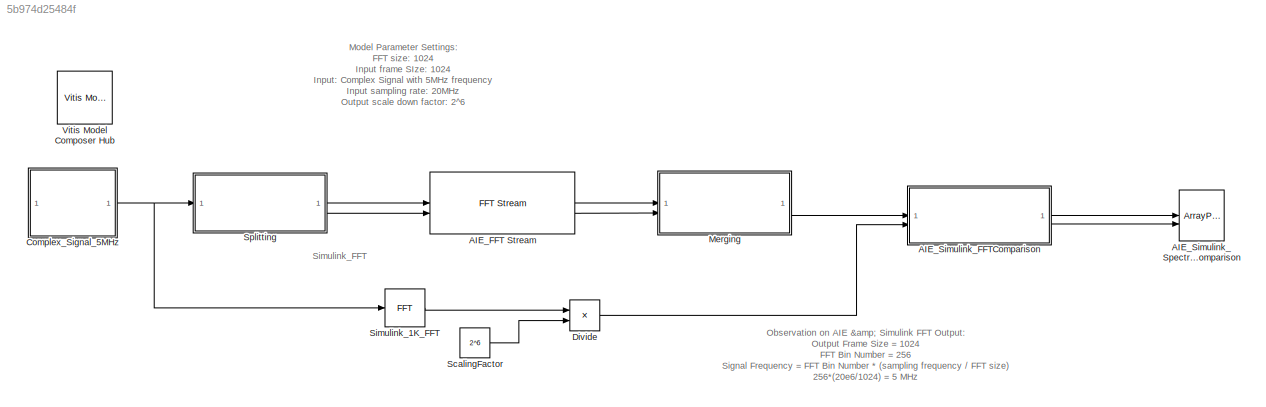
MODEL slx_5b974d25484f
KIND model
CONFIG AbsTol = auto
CONFIG EnableMultiTasking = off
CONFIG FixedStep = auto
CONFIG MaxStep = auto
CONFIG MinStep = auto
CONFIG RelTol = 1e-3
CONFIG SampleTimeConstraint = Unconstrained
CONFIG SolverName = VariableStepAuto
CONFIG StartTime = 0.0
CONFIG StopTime = 0.3e-4
BLOCK [Reference] AIE_FFT Stream  REF=aieDSP/FFT Stream
  SourceBlock = aieDSP/FFT Stream
  SourceType = FFT Stream
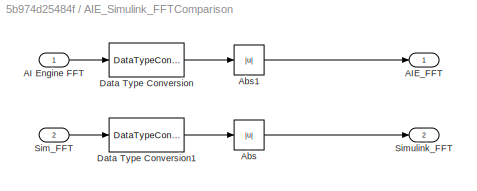
BLOCK [SubSystem] AIE_Simulink_FFTComparison
BLOCK [Inport] AIE_Simulink_FFTComparison/AI Engine FFT
BLOCK [Outport] AIE_Simulink_FFTComparison/AIE_FFT
BLOCK [Abs] AIE_Simulink_FFTComparison/Abs
  SaturateOnIntegerOverflow = off
BLOCK [Abs] AIE_Simulink_FFTComparison/Abs1
  OutDataTypeStr = single
  SaturateOnIntegerOverflow = off
BLOCK [DataTypeConversion] AIE_Simulink_FFTComparison/Data Type Conversion
  OutDataTypeStr = single
  RndMeth = Floor
  SaturateOnIntegerOverflow = off
BLOCK [DataTypeConversion] AIE_Simulink_FFTComparison/Data Type Conversion1
  OutDataTypeStr = single
  RndMeth = Floor
  SaturateOnIntegerOverflow = off
BLOCK [Inport] AIE_Simulink_FFTComparison/Sim_FFT
  Port = 2
BLOCK [Outport] AIE_Simulink_FFTComparison/Simulink_FFT
  Port = 2
BLOCK [ArrayPlot] AIE_Simulink_SpectrumComparison
  AxesScaling = Manual
  CustomXData = [100,1000]
  GraphicalSettings = {"Style":{"BackgroundColor":[0.15686274509803921,0.15686274509803921,0.15686274509803921],"AxesColor":[0,0,0],"LabelsColor":[0.68627450980392157,0.68627450980392157,0.68627450980392157],"PreserveColors":false,"Visible":[true,true],"LineStyle":["-","-"],"LineWidth":[1.5,1.5],"BarWidth":[0.9,0.9],"LineColor":[[1,1,0.066666666666666666],[0.074509803921568626,0.62352941176470589,1]],"LineFaceAlpha":[1...<+615ch>
  NumInputPorts = 2
  PlotType = Line
  ScopeFrameLocation = window
  ShowLegend = on
  Visible = on
  WasSavedAsWebScope = on
  WindowPosition = [915.000000,232.000000,1280.000000,655.000000,]
  YLimits = [-22.841163310961967 47.15883668903803]
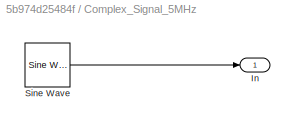
BLOCK [SubSystem] Complex_Signal_5MHz
BLOCK [Outport] Complex_Signal_5MHz/In
BLOCK [Reference] Complex_Signal_5MHz/Sine Wave  REF=dspsrcs4/Sine Wave
  SourceBlock = dspsrcs4/Sine Wave
  SourceType = Sine Wave
BLOCK [Product] Divide
  Inputs = */
  OutDataTypeStr = int16
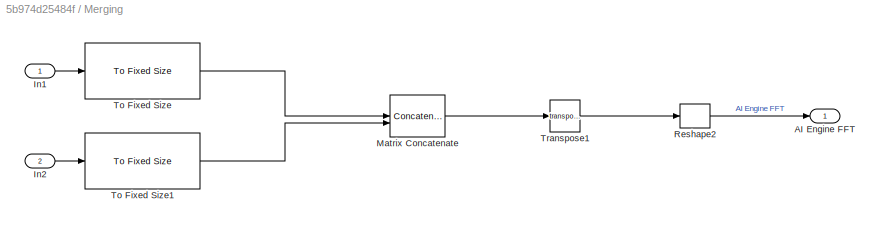
BLOCK [SubSystem] Merging
BLOCK [Outport] Merging/AI Engine FFT
BLOCK [Inport] Merging/In1
BLOCK [Inport] Merging/In2
  Port = 2
BLOCK [Concatenate] Merging/Matrix Concatenate
  ConcatenateDimension = 2
  Mode = Multidimensional array
BLOCK [Reshape] Merging/Reshape2
  OutputDimensions = [1, 10]
BLOCK [Reference] Merging/To Fixed Size  REF=aieUtilities/To Fixed Size
  SourceBlock = aieUtilities/To Fixed Size
  SourceType = To Fixed Size
BLOCK [Reference] Merging/To Fixed Size1  REF=aieUtilities/To Fixed Size
  SourceBlock = aieUtilities/To Fixed Size
  SourceType = To Fixed Size
BLOCK [Math] Merging/Transpose1
  Operator = transpose
BLOCK [Constant] ScalingFactor
  OutDataTypeStr = int16
  Value = 2^6
BLOCK [Reference] Simulink_1K_FFT  REF=dspxfrm3/FFT
  SourceBlock = dspxfrm3/FFT
  SourceType = FFT
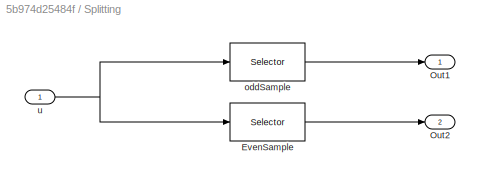
BLOCK [SubSystem] Splitting
BLOCK [Selector] Splitting/EvenSample
  IndexOptions = Index vector (dialog)
  Indices = 2:2:1024
  InputPortWidth = 1024
  OutputSizes = 1
BLOCK [Outport] Splitting/Out1
BLOCK [Outport] Splitting/Out2
  Port = 2
BLOCK [Selector] Splitting/oddSample
  IndexOptions = Index vector (dialog)
  Indices = 1:2:1024
  InputPortWidth = 1024
  OutputSizes = 1
BLOCK [Inport] Splitting/u
BLOCK [Reference] Vitis Model Composer Hub  REF=vmcUtilities/Vitis Model Composer Hub
  SourceBlock = vmcUtilities/Vitis Model Composer Hub
  SourceType = VMC Hub
  Tag = genX
  UserDataPersistent = on
ANNOTATION (root): Model Parameter Settings: FFT size: 1024 Input frame SIze: 1024 Input: Complex Signal with 5MHz frequency Input sampling rate: 20MHz Output scale down factor: 2^6 SSR : 2
ANNOTATION (root): Observation on AIE & Simulink FFT Output: Output Frame Size = 1024 FFT Bin Number = 256 Signal Frequency = FFT Bin Number * (sampling frequency / FFT size) 256*(20e6/1024) = 5 MHz
ANNOTATION (root): Simulink_FFT
LINE AIE_FFT Stream:1 -> Merging:1
LINE AIE_FFT Stream:2 -> Merging:2
LINE AIE_Simulink_FFTComparison/AI Engine FFT:1 -> AIE_Simulink_FFTComparison/Data Type Conversion:1
LINE AIE_Simulink_FFTComparison/Abs1:1 -> AIE_Simulink_FFTComparison/AIE_FFT:1
LINE AIE_Simulink_FFTComparison/Abs:1 -> AIE_Simulink_FFTComparison/Simulink_FFT:1
LINE AIE_Simulink_FFTComparison/Data Type Conversion1:1 -> AIE_Simulink_FFTComparison/Abs:1
LINE AIE_Simulink_FFTComparison/Data Type Conversion:1 -> AIE_Simulink_FFTComparison/Abs1:1
LINE AIE_Simulink_FFTComparison/Sim_FFT:1 -> AIE_Simulink_FFTComparison/Data Type Conversion1:1
LINE AIE_Simulink_FFTComparison:1 -> AIE_Simulink_SpectrumComparison:1
LINE AIE_Simulink_FFTComparison:2 -> AIE_Simulink_SpectrumComparison:2
LINE Complex_Signal_5MHz/Sine Wave:1 -> Complex_Signal_5MHz/In:1
NET Complex_Signal_5MHz:1 -> Simulink_1K_FFT:1, Splitting:1
LINE Divide:1 -> AIE_Simulink_FFTComparison:2
LINE Merging/In1:1 -> Merging/To Fixed Size:1
LINE Merging/In2:1 -> Merging/To Fixed Size1:1
LINE Merging/Matrix Concatenate:1 -> Merging/Transpose1:1
LINE Merging/Reshape2:1 -> Merging/AI Engine FFT:1
LINE Merging/To Fixed Size1:1 -> Merging/Matrix Concatenate:2
LINE Merging/To Fixed Size:1 -> Merging/Matrix Concatenate:1
LINE Merging/Transpose1:1 -> Merging/Reshape2:1
LINE Merging:1 -> AIE_Simulink_FFTComparison:1
LINE ScalingFactor:1 -> Divide:2
LINE Simulink_1K_FFT:1 -> Divide:1
LINE Splitting/EvenSample:1 -> Splitting/Out2:1
LINE Splitting/oddSample:1 -> Splitting/Out1:1
NET Splitting/u:1 -> Splitting/EvenSample:1, Splitting/oddSample:1
LINE Splitting:1 -> AIE_FFT Stream:1
LINE Splitting:2 -> AIE_FFT Stream:2
note: NET lines group one-source signal fan-out (src -> all destinations, sorted); 1:1 wires keep LINE
